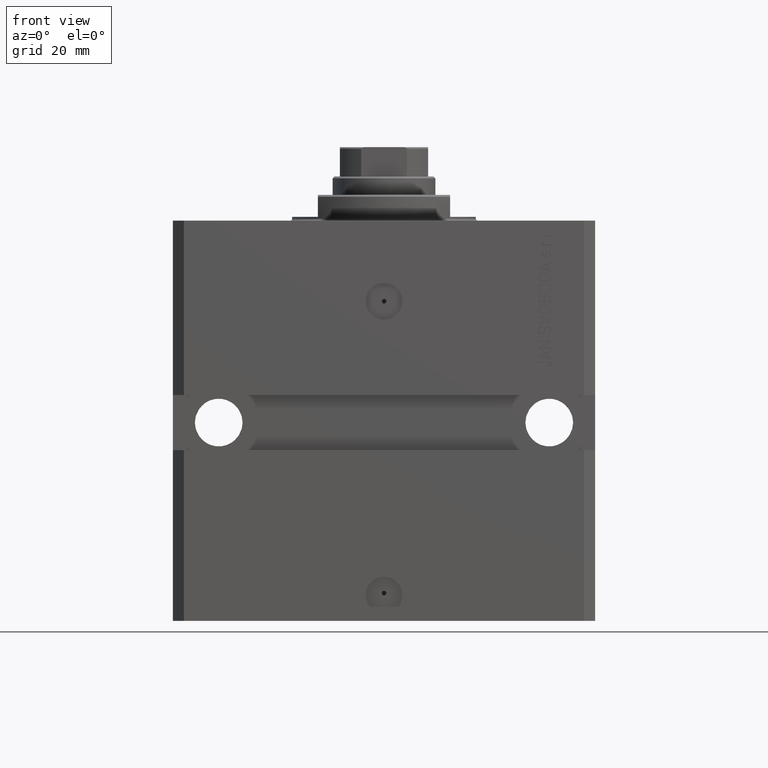
[diagram: clean part render]
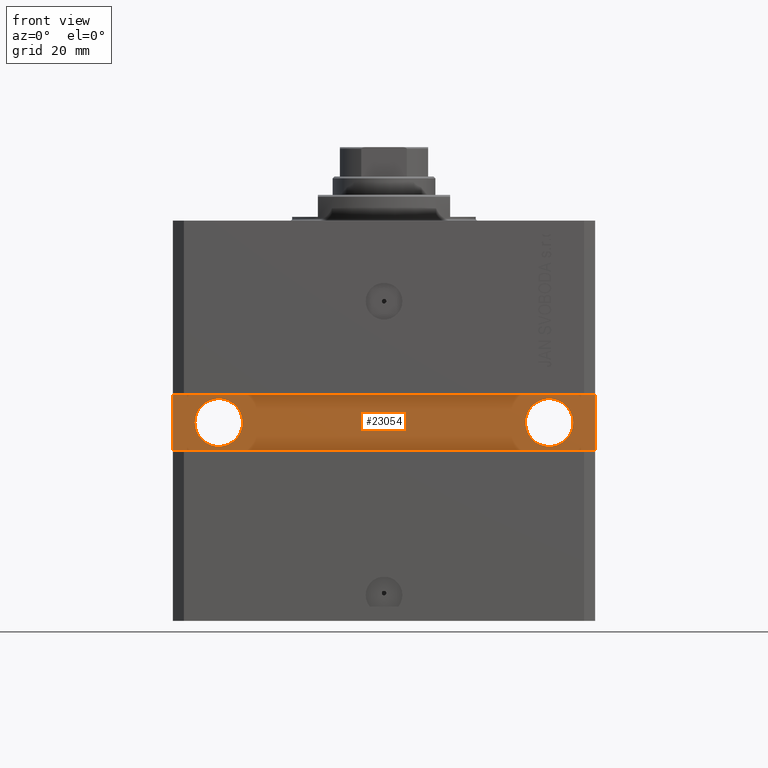
[diagram: same view with one face highlighted and labeled with its STEP entity id]
A machine part, front view. The second image highlights one B-rep face of the part: STEP entity #23054.
In plain terms, the highlighted planar face has unit normal (0, -1, 0).
Its self-contained STEP definition (entity closure, byte-faithful):
#552 = DIRECTION ( 'NONE',  ( 7.680174481697266334E-17, -1.000000000000000000, 1.232595164407830946E-32 ) ) ;
#1067 = CARTESIAN_POINT ( 'NONE',  ( 51.50000000000001421, -39.99999999999999289, -55.00000000000000000 ) ) ;
#2026 = DIRECTION ( 'NONE',  ( 0.000000000000000000, 0.000000000000000000, -1.000000000000000000 ) ) ;
#2907 = VERTEX_POINT ( 'NONE', #33213 ) ;
#3256 = DIRECTION ( 'NONE',  ( -1.000000000000000000, -1.206764157201257045E-16, -2.413528314402514090E-16 ) ) ;
#3530 = EDGE_CURVE ( 'NONE', #17951, #22197, #46930, .T. ) ;
#3935 = CARTESIAN_POINT ( 'NONE',  ( 45.00000000000001421, -39.99999999999999289, -55.00000000000000000 ) ) ;
#4339 = CARTESIAN_POINT ( 'NONE',  ( -44.99999999999998579, -40.00000000000000000, -55.00000000000001421 ) ) ;
#4762 = EDGE_LOOP ( 'NONE', ( #14882, #48440 ) ) ;
#4823 = DIRECTION ( 'NONE',  ( 1.101411730780568590E-16, -1.000000000000000000, 0.000000000000000000 ) ) ;
#4843 = ORIENTED_EDGE ( 'NONE', *, *, #29997, .T. ) ;
#5586 = ORIENTED_EDGE ( 'NONE', *, *, #9947, .T. ) ;
#7071 = EDGE_CURVE ( 'NONE', #22197, #17951, #17665, .T. ) ;
#7411 = CARTESIAN_POINT ( 'NONE',  ( 57.50000000000000711, -39.99999999999998579, -47.49999999999997868 ) ) ;
#8179 = LINE ( 'NONE', #23088, #25528 ) ;
#8809 = VERTEX_POINT ( 'NONE', #36787 ) ;
#9947 = EDGE_CURVE ( 'NONE', #44543, #39053, #44603, .T. ) ;
#12723 = CARTESIAN_POINT ( 'NONE',  ( 57.50000000000000711, -39.99999999999998579, -62.50000000000000000 ) ) ;
#14107 = VERTEX_POINT ( 'NONE', #14183 ) ;
#14183 = CARTESIAN_POINT ( 'NONE',  ( -38.49999999999998579, -40.00000000000000000, -55.00000000000001421 ) ) ;
#14882 = ORIENTED_EDGE ( 'NONE', *, *, #7071, .F. ) ;
#15001 = CARTESIAN_POINT ( 'NONE',  ( -57.50000000000000711, -40.00000000000000000, -62.50000000000000000 ) ) ;
#15173 = EDGE_CURVE ( 'NONE', #8809, #44543, #43568, .T. ) ;
#15504 = CARTESIAN_POINT ( 'NONE',  ( 4.842396851142260860E-15, -39.99999999999999289, 0.000000000000000000 ) ) ;
#17665 = CIRCLE ( 'NONE', #45478, 6.499999999999999112 ) ;
#17929 = CIRCLE ( 'NONE', #30642, 6.499999999999999112 ) ;
#17951 = VERTEX_POINT ( 'NONE', #44204 ) ;
#18027 = DIRECTION ( 'NONE',  ( 1.101411730780568590E-16, -1.000000000000000000, 0.000000000000000000 ) ) ;
#18817 = AXIS2_PLACEMENT_3D ( 'NONE', #36938, #18027, #32714 ) ;
#18992 = FACE_BOUND ( 'NONE', #4762, .T. ) ;
#19482 = FACE_OUTER_BOUND ( 'NONE', #26596, .T. ) ;
#20564 = EDGE_CURVE ( 'NONE', #14107, #2907, #34738, .T. ) ;
#21785 = VECTOR ( 'NONE', #2026, 1000.000000000000000 ) ;
#21960 = ORIENTED_EDGE ( 'NONE', *, *, #44039, .F. ) ;
#22197 = VERTEX_POINT ( 'NONE', #1067 ) ;
#22387 = LINE ( 'NONE', #22889, #39040 ) ;
#22889 = CARTESIAN_POINT ( 'NONE',  ( 57.50000000000000711, -39.99999999999998579, -47.49999999999997868 ) ) ;
#23054 = ADVANCED_FACE ( 'NONE', ( #18992, #38636, #19482 ), #49098, .T. ) ;
#23088 = CARTESIAN_POINT ( 'NONE',  ( 57.50000000000000711, -39.99999999999998579, -62.50000000000000000 ) ) ;
#25528 = VECTOR ( 'NONE', #30072, 1000.000000000000000 ) ;
#25550 = ORIENTED_EDGE ( 'NONE', *, *, #20564, .F. ) ;
#26596 = EDGE_LOOP ( 'NONE', ( #5586, #35685, #4843, #33762 ) ) ;
#26942 = DIRECTION ( 'NONE',  ( 1.000000000000000000, 1.206764157201257045E-16, 0.000000000000000000 ) ) ;
#29334 = DIRECTION ( 'NONE',  ( 1.000000000000000000, 0.000000000000000000, 0.000000000000000000 ) ) ;
#29665 = DIRECTION ( 'NONE',  ( 1.000000000000000000, 1.206764157201257045E-16, 0.000000000000000000 ) ) ;
#29997 = EDGE_CURVE ( 'NONE', #40626, #8809, #22387, .T. ) ;
#30072 = DIRECTION ( 'NONE',  ( 0.000000000000000000, 0.000000000000000000, 1.000000000000000000 ) ) ;
#30642 = AXIS2_PLACEMENT_3D ( 'NONE', #4339, #4823, #31419 ) ;
#31377 = DIRECTION ( 'NONE',  ( 1.000000000000000000, 0.000000000000000000, 0.000000000000000000 ) ) ;
#31419 = DIRECTION ( 'NONE',  ( 1.000000000000000000, 0.000000000000000000, 0.000000000000000000 ) ) ;
#32714 = DIRECTION ( 'NONE',  ( 1.000000000000000000, 0.000000000000000000, 0.000000000000000000 ) ) ;
#33213 = CARTESIAN_POINT ( 'NONE',  ( -51.49999999999998579, -40.00000000000000000, -55.00000000000001421 ) ) ;
#33762 = ORIENTED_EDGE ( 'NONE', *, *, #15173, .T. ) ;
#34170 = EDGE_CURVE ( 'NONE', #39053, #40626, #8179, .T. ) ;
#34738 = CIRCLE ( 'NONE', #18817, 6.499999999999999112 ) ;
#35685 = ORIENTED_EDGE ( 'NONE', *, *, #34170, .T. ) ;
#36787 = CARTESIAN_POINT ( 'NONE',  ( -57.50000000000000711, -40.00000000000000000, -47.50000000000000711 ) ) ;
#36938 = CARTESIAN_POINT ( 'NONE',  ( -44.99999999999998579, -40.00000000000000000, -55.00000000000001421 ) ) ;
#38636 = FACE_BOUND ( 'NONE', #43580, .T. ) ;
#39040 = VECTOR ( 'NONE', #3256, 1000.000000000000000 ) ;
#39053 = VERTEX_POINT ( 'NONE', #12723 ) ;
#40026 = VECTOR ( 'NONE', #29665, 1000.000000000000000 ) ;
#40626 = VERTEX_POINT ( 'NONE', #7411 ) ;
#42256 = CARTESIAN_POINT ( 'NONE',  ( -57.50000000000000711, -40.00000000000000000, -62.50000000000000000 ) ) ;
#43568 = LINE ( 'NONE', #47532, #21785 ) ;
#43580 = EDGE_LOOP ( 'NONE', ( #25550, #21960 ) ) ;
#44031 = DIRECTION ( 'NONE',  ( 7.680174481697266334E-17, -1.000000000000000000, 1.232595164407830946E-32 ) ) ;
#44039 = EDGE_CURVE ( 'NONE', #2907, #14107, #17929, .T. ) ;
#44204 = CARTESIAN_POINT ( 'NONE',  ( 38.50000000000001421, -39.99999999999999289, -55.00000000000000000 ) ) ;
#44543 = VERTEX_POINT ( 'NONE', #42256 ) ;
#44603 = LINE ( 'NONE', #15001, #40026 ) ;
#45478 = AXIS2_PLACEMENT_3D ( 'NONE', #3935, #44031, #29334 ) ;
#45596 = DIRECTION ( 'NONE',  ( 1.206764157201257045E-16, -1.000000000000000000, 0.000000000000000000 ) ) ;
#46153 = AXIS2_PLACEMENT_3D ( 'NONE', #46297, #552, #31377 ) ;
#46297 = CARTESIAN_POINT ( 'NONE',  ( 45.00000000000001421, -39.99999999999999289, -55.00000000000000000 ) ) ;
#46930 = CIRCLE ( 'NONE', #46153, 6.499999999999999112 ) ;
#47493 = AXIS2_PLACEMENT_3D ( 'NONE', #15504, #45596, #26942 ) ;
#47532 = CARTESIAN_POINT ( 'NONE',  ( -57.50000000000000711, -40.00000000000000000, -47.50000000000000711 ) ) ;
#48440 = ORIENTED_EDGE ( 'NONE', *, *, #3530, .F. ) ;
#49098 = PLANE ( 'NONE',  #47493 ) ;